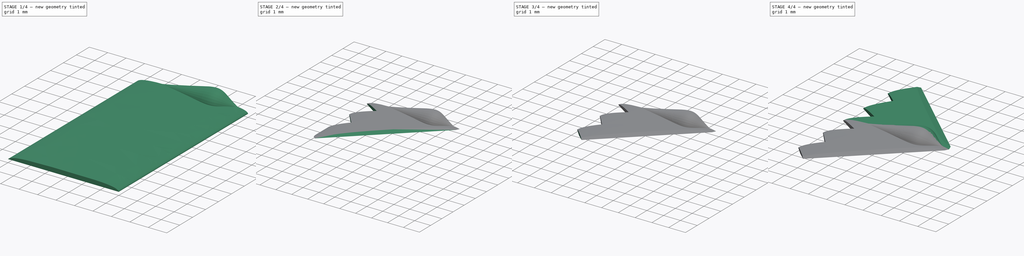
[diagram: build sequence overview — one tinted view per stage of 4, left to right]
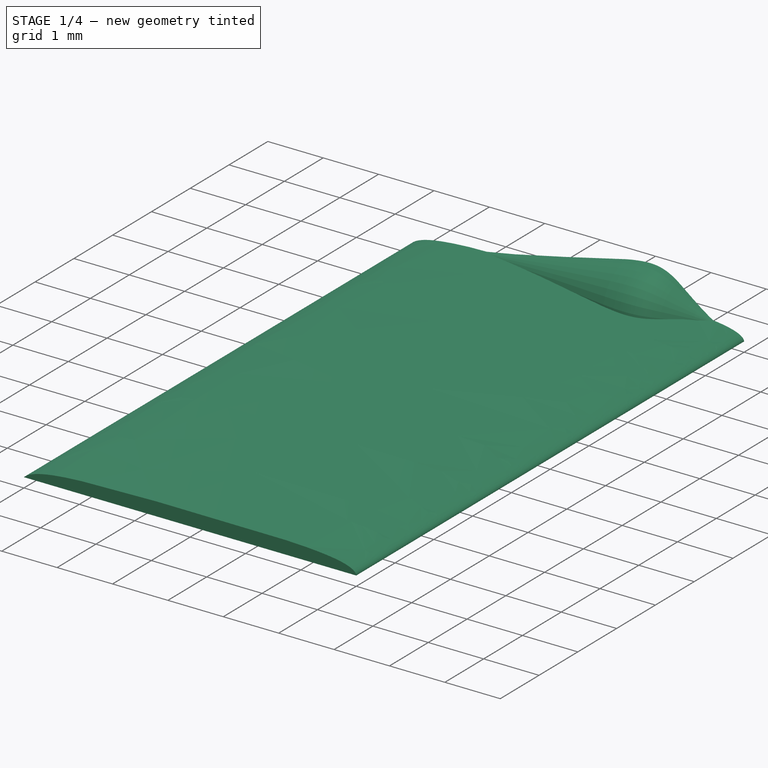
[diagram: stage 1 of 4 — iso view after this stage's code; geometry added in this stage tinted green]
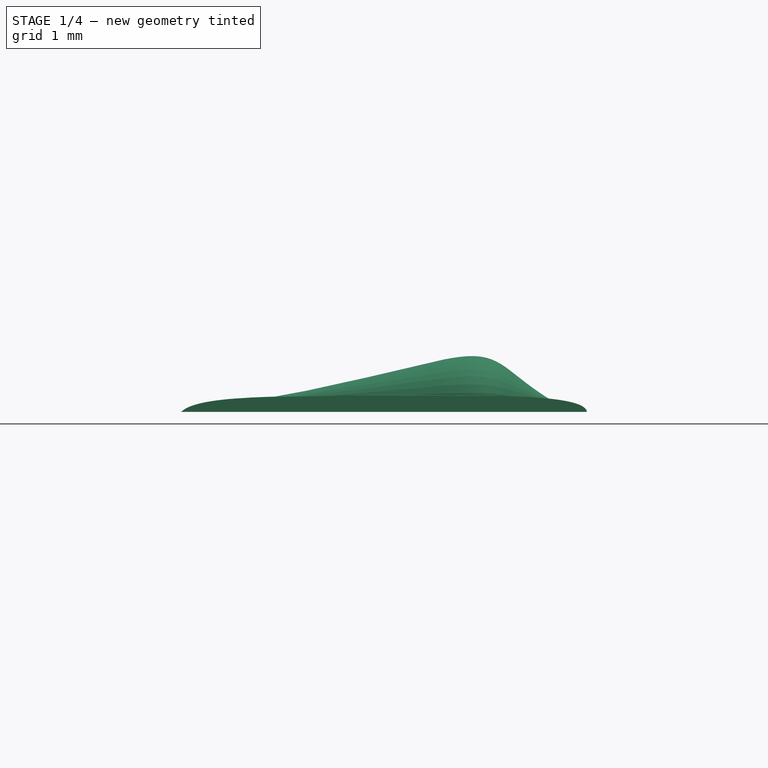
[diagram: stage 1 of 4 — front view after this stage's code; geometry added in this stage tinted green]
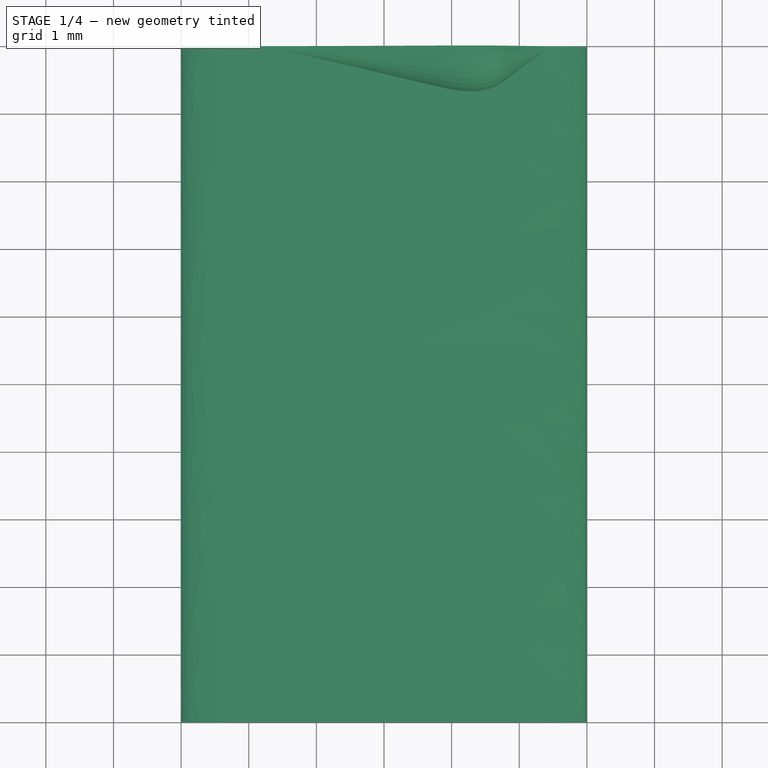
[diagram: stage 1 of 4 — top view after this stage's code; geometry added in this stage tinted green]
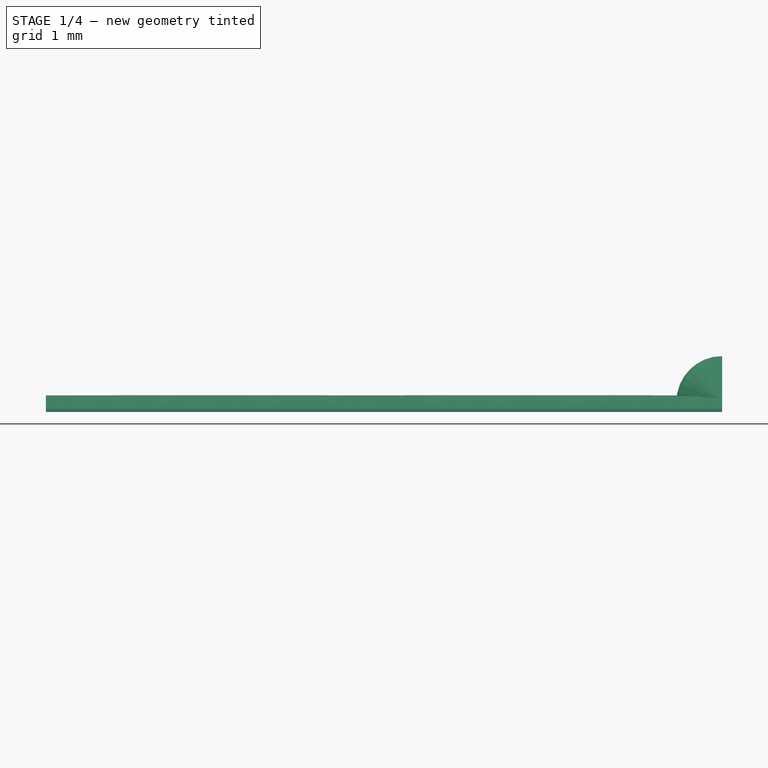
[diagram: stage 1 of 4 — right view after this stage's code; geometry added in this stage tinted green]
FCSTD DOCUMENT  (FreeCAD 0.19R)
Label: test_jet
License: All rights reserved
LicenseURL: http://en.wikipedia.org/wiki/All_rights_reserved
objects: Sketcher::SketchObject×6, PartDesign::Pocket×4, PartDesign::Body×2, Part::Fuse×2, PartDesign::Pad×1, PartDesign::Revolution×1, Part::Mirroring×1
note: 23 computed .brp shape members not serialized (recipe doc carries the construction recipe); baked Part::Feature solids carry a one-line shape summary decoded from their .brp

FEATURE [Sketcher::SketchObject] Sketch
  FullyConstrained = false
  MapMode = 5
  Placement = pos=(0,0,0) rot=(1,0,0;1.5708rad)
  Support = -> [XZ_Plane]
  sketch-geometry (12):
    g0: LineSegment StartX=-3 StartY=-0.149217 StartZ=0 EndX=3 EndY=-0.149217 EndZ=0
    g1-g6: Circle x6 (B-spline internal-alignment scaffolding for g7; pole/knot coordinates omitted)
    g7: BSplineCurve PolesCount=6 KnotsCount=4 Degree=3 IsPeriodic=0
    g8-g11: GeomPoint x4 (B-spline internal-alignment scaffolding for g7; pole/knot coordinates omitted)
  constraints (9):
    c: DistanceX(g0,g0) = 6
    c: Symmetric(g0,g0,g-2)
    c: Coincident(g7,g0)
    c: Weight(g1) = 1
    c: Equal(g1, g2-g6) x5
    c: Coincident(g7,g0)
    c: InternalAlignment(g1-g6 -> g7) x6
    c: InternalAlignment(g8-g11 -> g7) x4
    c: Horizontal(g3,g4)
FEATURE [PartDesign::Pad] Pad
  Direction = (1,1,1)
  Length = 10
  Length2 = 100
  Placement = pos=(0,0,0) rot=(1,0,0;1.5708rad)
  Profile = -> Sketch
  Type = 0
FEATURE [PartDesign::Body] Body
  Group = -> [Sketch,Pad,Sketch001,Pocket,Sketch002,Pocket001,Sketch004,Pocket002,Sketch005,Pocket003]
  Origin = -> Origin
  Tip = -> Pocket003
FEATURE [Sketcher::SketchObject] Sketch009
  FullyConstrained = false
  MapMode = 5
  Placement = pos=(0,0,0) rot=(1,0,0;1.5708rad)
  Support = -> [XZ_Plane001]
  sketch-geometry (10):
    g0-g4: Circle x5 (B-spline internal-alignment scaffolding for g5; pole/knot coordinates omitted)
    g5: BSplineCurve PolesCount=5 KnotsCount=3 Degree=3 IsPeriodic=0
    g6: GeomPoint X=2.51345 Y=0 Z=0
    g7: GeomPoint X=0.228824 Y=0.933202 Z=0
    g8: GeomPoint X=-2.03131 Y=0 Z=0
    g9: LineSegment StartX=-2.03131 StartY=0 StartZ=0 EndX=2.51345 EndY=0 EndZ=0
  constraints (9):
    c: Weight(g0) = 1
    c: Equal(g0, g1-g4) x4
    c: PointOnObject(g5,g-1)
    c: InternalAlignment(g0-g4 -> g5) x5
    c: Coincident(g0,g6)
    c: Coincident(g0,g9)
    c: Coincident(g5,g8)
    c: Coincident(g9,g5)
    c: PointOnObject(g5,g-1)
FEATURE [PartDesign::Revolution] Revolution
  Angle = 90
  Axis = (1,0,0)
  Base = (0,0,0)
  Placement = pos=(0,0,0) rot=(1,0,0;1.5708rad)
  Profile = -> Sketch009
  ReferenceAxis = -> Sketch009 [H_Axis]
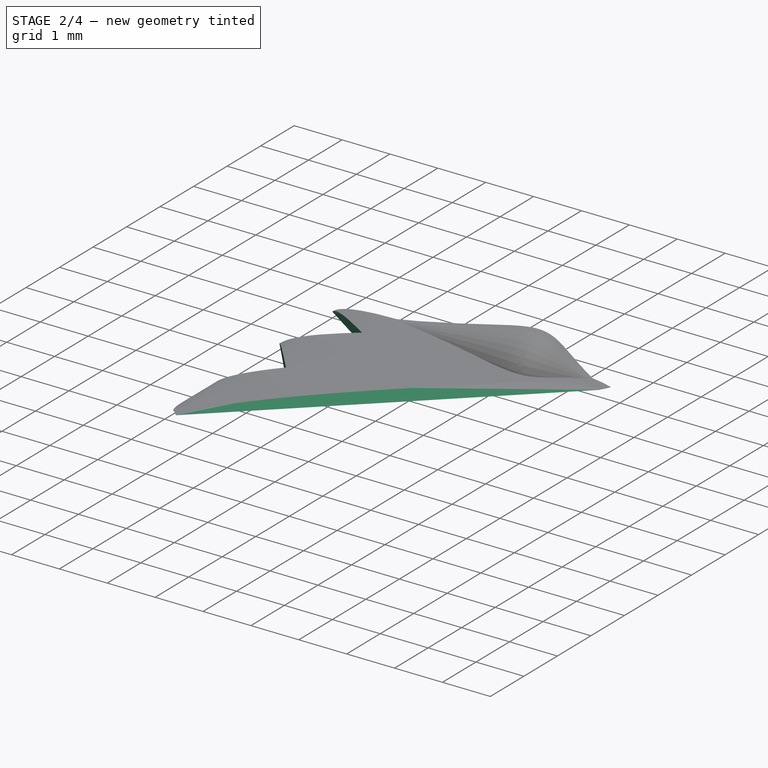
[diagram: stage 2 of 4 — iso view after this stage's code; geometry added in this stage tinted green]
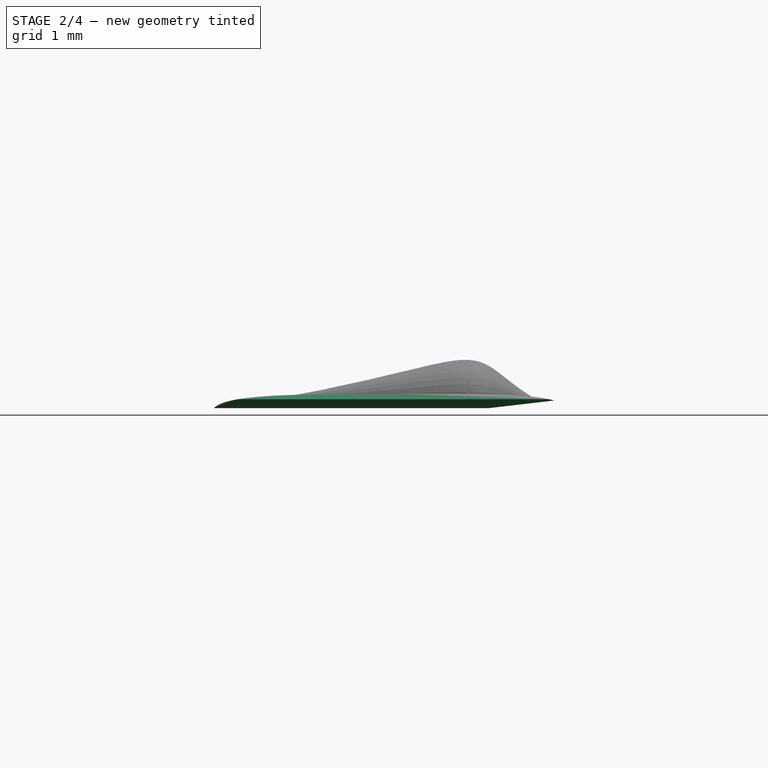
[diagram: stage 2 of 4 — front view after this stage's code; geometry added in this stage tinted green]
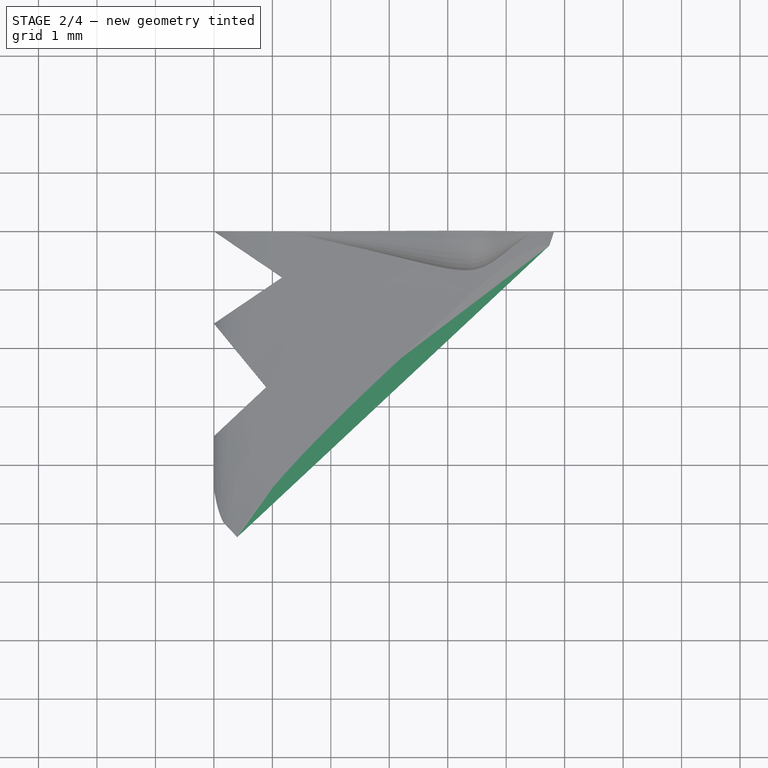
[diagram: stage 2 of 4 — top view after this stage's code; geometry added in this stage tinted green]
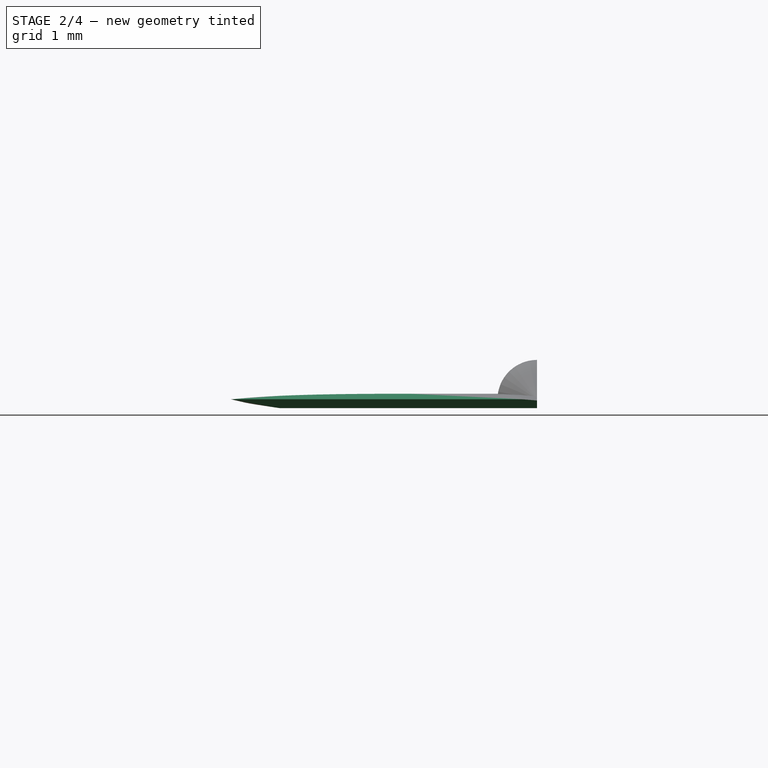
[diagram: stage 2 of 4 — right view after this stage's code; geometry added in this stage tinted green]
FEATURE [Sketcher::SketchObject] Sketch001
  ExternalGeometry = -> [Pad]
  FullyConstrained = false
  MapMode = 5
  Support = -> [XY_Plane]
  sketch-geometry (12):
    g0: LineSegment StartX=3 StartY=0 StartZ=0 EndX=-2.60075 EndY=-5.23369 EndZ=0
    g1: LineSegment StartX=-2.60075 StartY=-5.23369 StartZ=0 EndX=-3.65017 EndY=-4.11067 EndZ=0
    g2: LineSegment StartX=-3.65017 StartY=-4.11067 StartZ=0 EndX=-2.1039 EndY=-2.66575 EndZ=0
    g3: LineSegment StartX=-2.1039 StartY=-2.66575 StartZ=0 EndX=-3 EndY=-1.57682 EndZ=0
    g4: LineSegment StartX=-3 StartY=-1.57682 StartZ=0 EndX=-1.83074 EndY=-0.78841 EndZ=0
    g5: LineSegment StartX=-1.83074 StartY=-0.78841 StartZ=0 EndX=-3 EndY=1e-16 EndZ=0
    g6: LineSegment StartX=3 StartY=0 StartZ=0 EndX=7.70484 EndY=-3.44035 EndZ=0
    g7: LineSegment StartX=7.70484 StartY=-3.44035 StartZ=0 EndX=6.72306 EndY=-11.3523 EndZ=0
    g8: LineSegment StartX=6.72306 StartY=-11.3523 StartZ=0 EndX=-11.6997 EndY=-12.4207 EndZ=0
    g9: LineSegment StartX=-11.6997 StartY=-12.4207 StartZ=0 EndX=-13.6632 EndY=-3.46923 EndZ=0
    g10: LineSegment StartX=-13.6632 StartY=-3.46923 StartZ=0 EndX=-9.44735 EndY=0 EndZ=0
    g11: LineSegment StartX=-9.44735 StartY=0 StartZ=0 EndX=-3 EndY=1e-16 EndZ=0
  constraints (22):
    c: PointOnObject(g0,g-1)
    c: Coincident(g1,g0)
    c: Coincident(g2,g1)
    c: PointOnObject(g3,g-4)
    c: Coincident(g4,g3)
    c: Coincident(g5,g4)
    c: PointOnObject(g5,g-1)
    c: PointOnObject(g5,g-4)
    c: PointOnObject(g0,g-3)
    c: Angle(g0,g1) = 1.5708
    c: Angle(g1,g2) = 1.5708
    c: Coincident(g2,g3)
    c: Equal(g5,g4)
    c: Equal(g4,g3)
    c: Coincident(g6,g0)
    c: Coincident(g7,g6)
    c: Coincident(g8,g7)
    c: Coincident(g9,g8)
    c: Coincident(g10,g9)
    c: PointOnObject(g10,g-1)
    c: Coincident(g11,g10)
    c: Coincident(g11,g5)
FEATURE [PartDesign::Pocket] Pocket
  BaseFeature = -> Pad
  Length = 5
  Length2 = 100
  Midplane = true
  Placement = pos=(0,0,0) rot=(1,0,0;1.5708rad)
  Profile = -> Sketch001
  Type = 1
FEATURE [Sketcher::SketchObject] Sketch002
  ExternalGeometry = -> [Pocket]
  FullyConstrained = false
  MapMode = 5
  Placement = pos=(-3.99923,-3.73713,1.7e-15) rot=(-0.681102,-0.268702,0.681102;3.6666rad)
  Support = -> [Pocket]
  sketch-geometry (5):
    g0: LineSegment StartX=-0.00161059 StartY=2.04828 StartZ=0 EndX=0.272169 EndY=0.442639 EndZ=0
    g1: LineSegment StartX=0.272169 StartY=0.442639 StartZ=0 EndX=0.79938 EndY=2.41663 EndZ=0
    g2: LineSegment StartX=0.79938 StartY=2.41663 StartZ=0 EndX=-0.981404 EndY=2.41663 EndZ=0
    g3: LineSegment StartX=-0.981404 StartY=2.41663 StartZ=0 EndX=-0.458724 EndY=0.497927 EndZ=0
    g4: LineSegment StartX=-0.458724 StartY=0.497927 StartZ=0 EndX=-0.00161059 EndY=2.04828 EndZ=0
  constraints (7):
    c: Coincident(g0,g-3)
    c: Coincident(g1,g0)
    c: Horizontal(g2)
    c: Coincident(g3,g2)
    c: Coincident(g4,g0)
    c: Coincident(g3,g4)
    c: Coincident(g1,g2)
FEATURE [PartDesign::Pocket] Pocket001
  BaseFeature = -> Pocket
  Length = 5
  Length2 = 100
  Midplane = true
  Placement = pos=(0,0,0) rot=(1,0,0;1.5708rad)
  Profile = -> Sketch002
  Type = 1
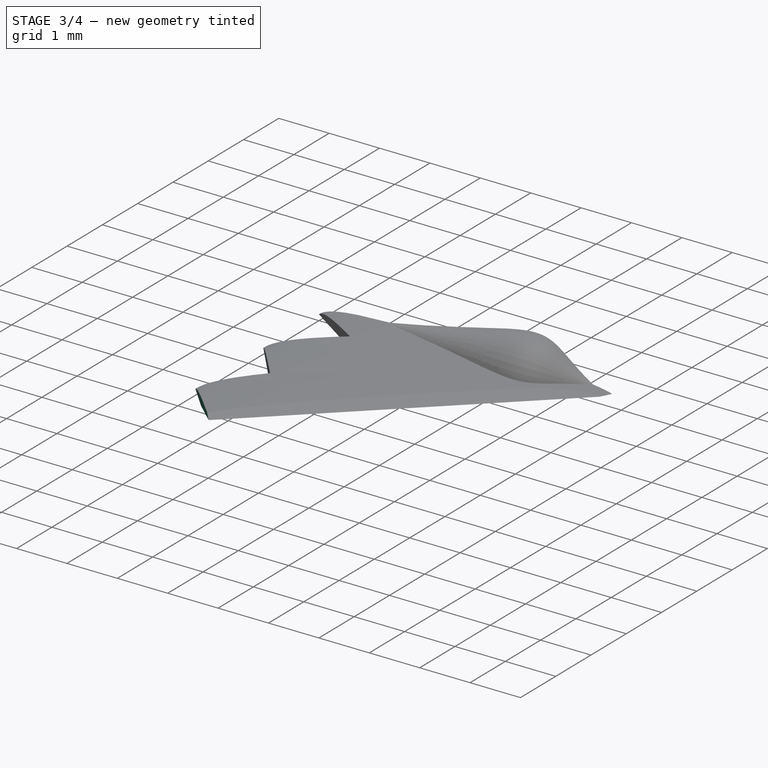
[diagram: stage 3 of 4 — iso view after this stage's code; geometry added in this stage tinted green]
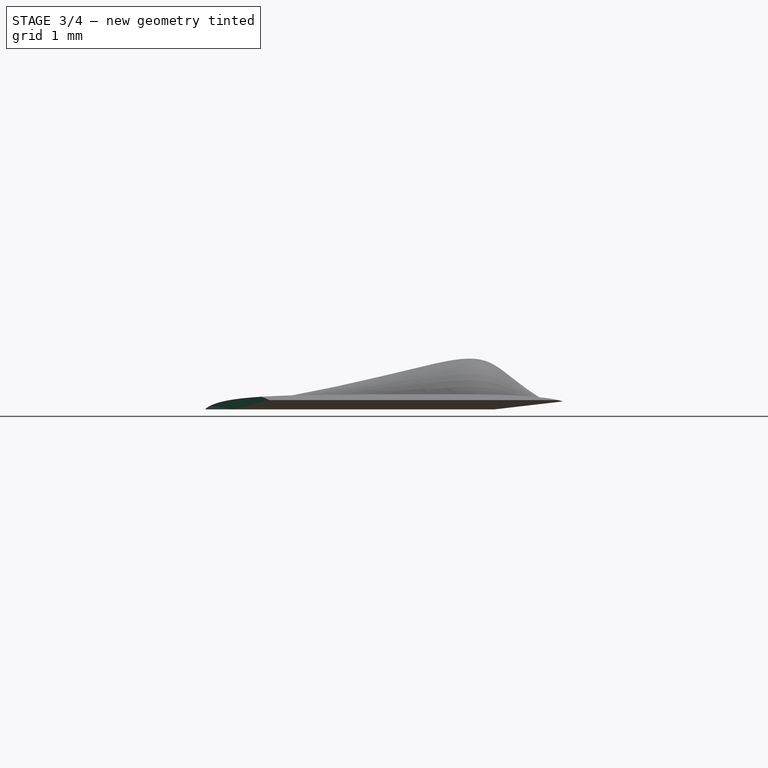
[diagram: stage 3 of 4 — front view after this stage's code; geometry added in this stage tinted green]
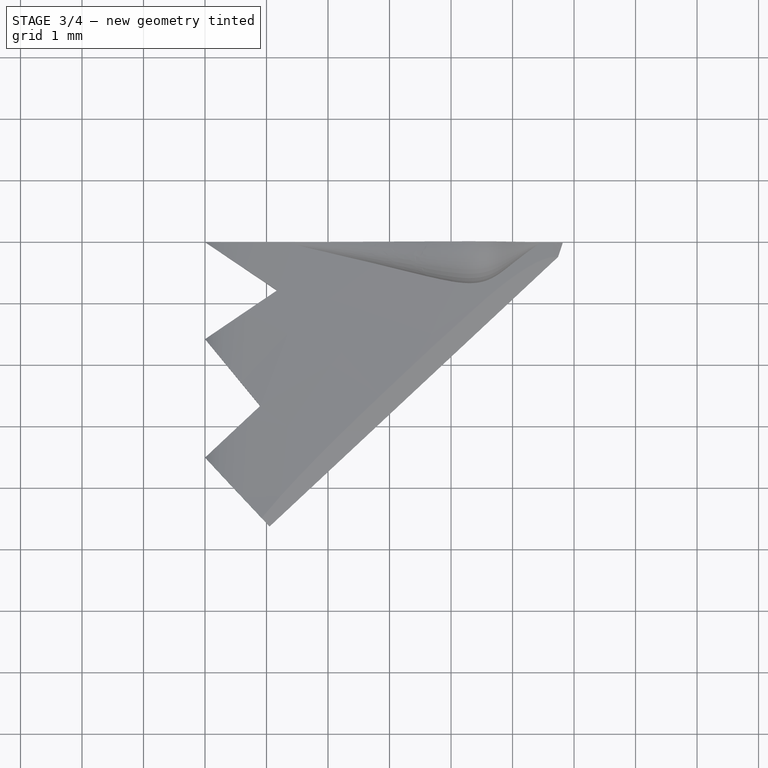
[diagram: stage 3 of 4 — top view after this stage's code; geometry added in this stage tinted green]
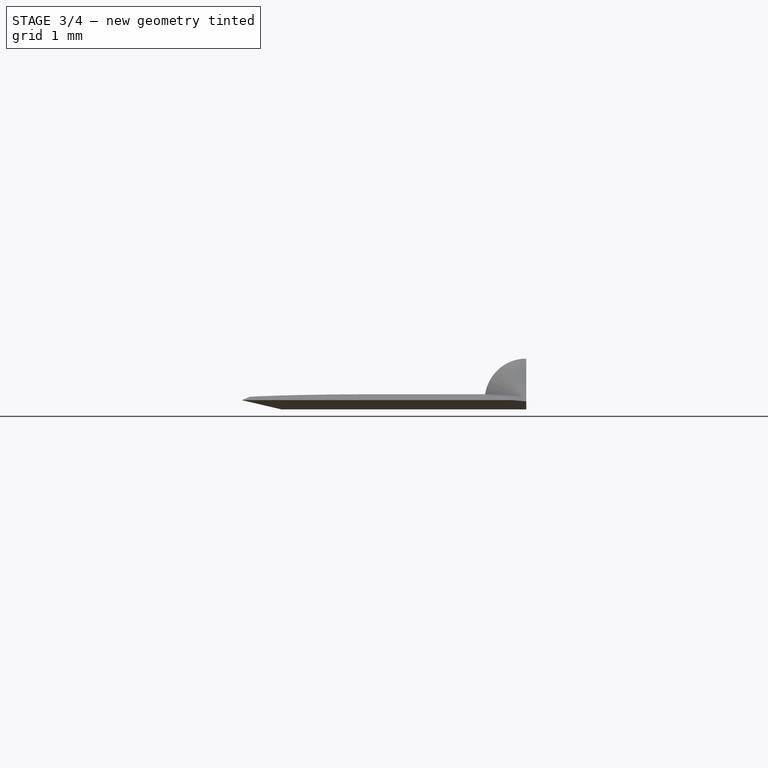
[diagram: stage 3 of 4 — right view after this stage's code; geometry added in this stage tinted green]
FEATURE [Sketcher::SketchObject] Sketch004
  FullyConstrained = false
  MapMode = 5
  Placement = pos=(-2.72745,0,0) rot=(0.707107,0,-0.707107;3.14159rad)
  sketch-geometry (4):
    g0: LineSegment StartX=0.985112 StartY=0 StartZ=0 EndX=-0.925007 EndY=0 EndZ=0
    g1: LineSegment StartX=-0.925007 StartY=0 StartZ=0 EndX=-0.925007 EndY=-0.697533 EndZ=0
    g2: LineSegment StartX=-0.925007 StartY=-0.697533 StartZ=0 EndX=0.985112 EndY=-0.697533 EndZ=0
    g3: LineSegment StartX=0.985112 StartY=-0.697533 StartZ=0 EndX=0.985112 EndY=0 EndZ=0
  constraints (9):
    c: Coincident(g0,g1)
    c: Coincident(g1,g2)
    c: Coincident(g2,g3)
    c: Coincident(g3,g0)
    c: Horizontal(g0)
    c: Horizontal(g2)
    c: Vertical(g1)
    c: Vertical(g3)
    c: PointOnObject(g0,g-1)
FEATURE [PartDesign::Pocket] Pocket002
  BaseFeature = -> Pocket001
  Length = 5
  Length2 = 100
  Midplane = true
  Placement = pos=(0,0,0) rot=(1,0,0;1.5708rad)
  Profile = -> Sketch004
  Type = 1
FEATURE [Sketcher::SketchObject] Sketch005
  ExternalGeometry = -> [Pocket002]
  FullyConstrained = false
  MapMode = 5
  Support = -> [XY_Plane]
  sketch-geometry (5):
    g0: LineSegment StartX=-3 StartY=-3.50312 StartZ=0 EndX=-1.46489 EndY=-5.14589 EndZ=0
    g1: LineSegment StartX=-1.46489 StartY=-5.14589 StartZ=0 EndX=-2.33534 EndY=-5.97394 EndZ=0
    g2: LineSegment StartX=-2.33534 StartY=-5.97394 StartZ=0 EndX=-5.9421 EndY=-4.6292 EndZ=0
    g3: LineSegment StartX=-5.9421 StartY=-4.6292 StartZ=0 EndX=-4.68314 EndY=-2.48371 EndZ=0
    g4: LineSegment StartX=-4.68314 StartY=-2.48371 StartZ=0 EndX=-3 EndY=-3.50312 EndZ=0
  constraints (7):
    c: Coincident(g1,g0)
    c: Coincident(g2,g1)
    c: Coincident(g4,g3)
    c: Coincident(g4,g-3)
    c: Coincident(g2,g3)
    c: Angle(g0,g-3) = 1.5708
    c: Coincident(g0,g4)
FEATURE [PartDesign::Pocket] Pocket003
  BaseFeature = -> Pocket002
  Length = 5
  Length2 = 100
  Midplane = true
  Placement = pos=(0,0,0) rot=(1,0,0;1.5708rad)
  Profile = -> Sketch005
  Type = 1
FEATURE [PartDesign::Body] Body001
  Group = -> [Sketch009,Revolution]
  Origin = -> Origin001
  Tip = -> Revolution
FEATURE [Part::Fuse] Fusion
  Base = -> Body
  Tool = -> Body001
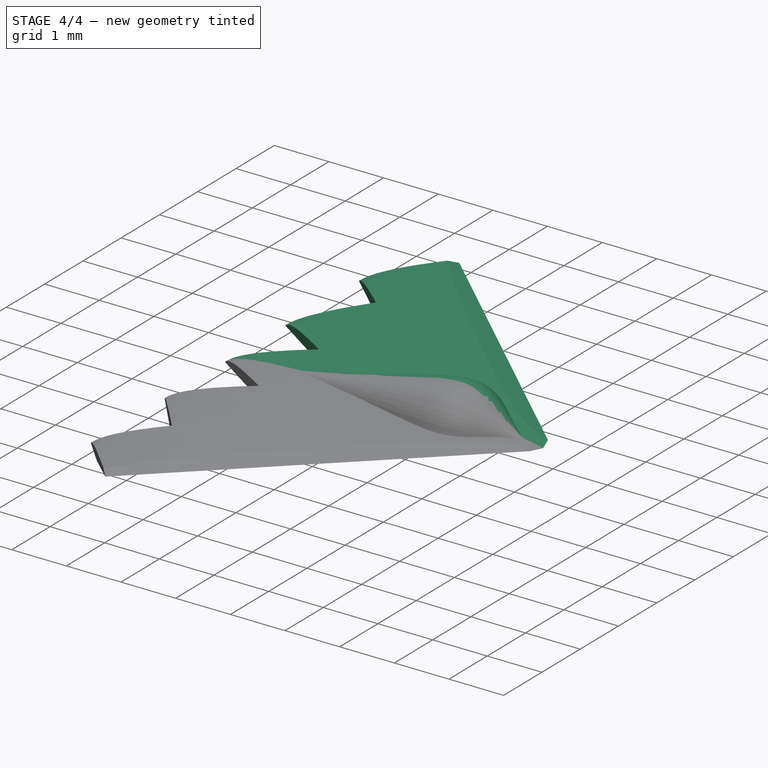
[diagram: stage 4 of 4 — iso view after this stage's code; geometry added in this stage tinted green]
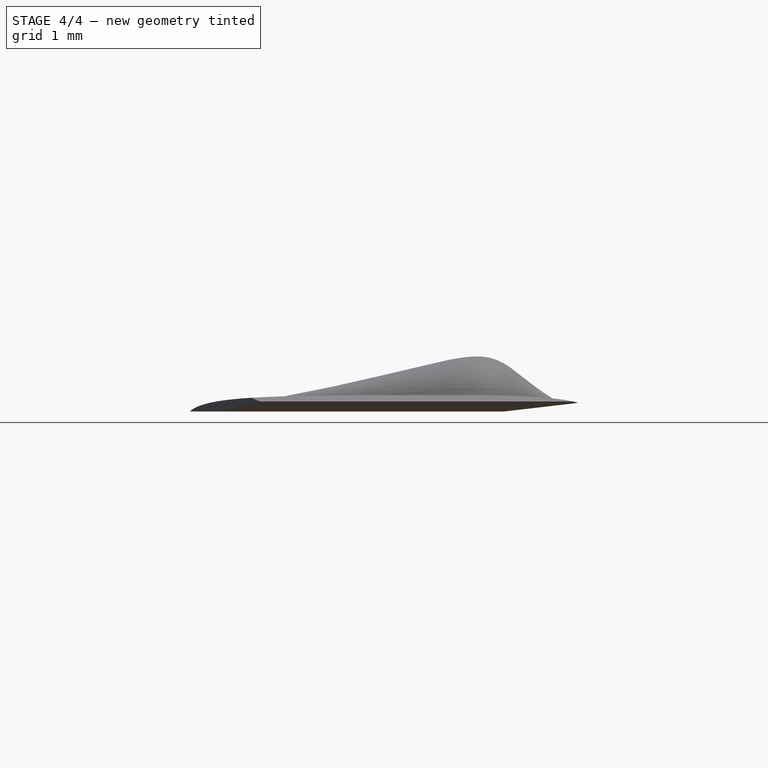
[diagram: stage 4 of 4 — front view after this stage's code; geometry added in this stage tinted green]
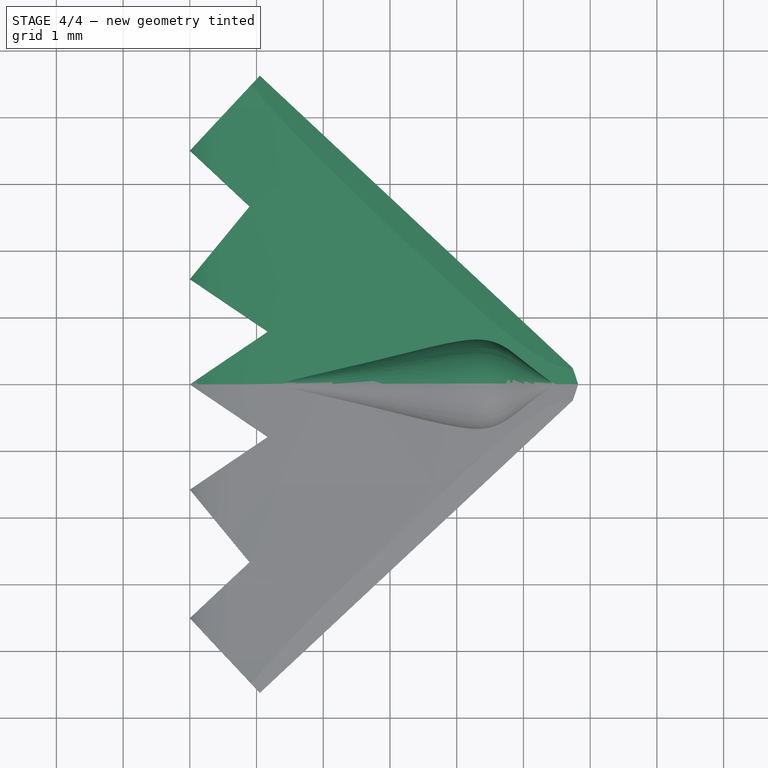
[diagram: stage 4 of 4 — top view after this stage's code; geometry added in this stage tinted green]
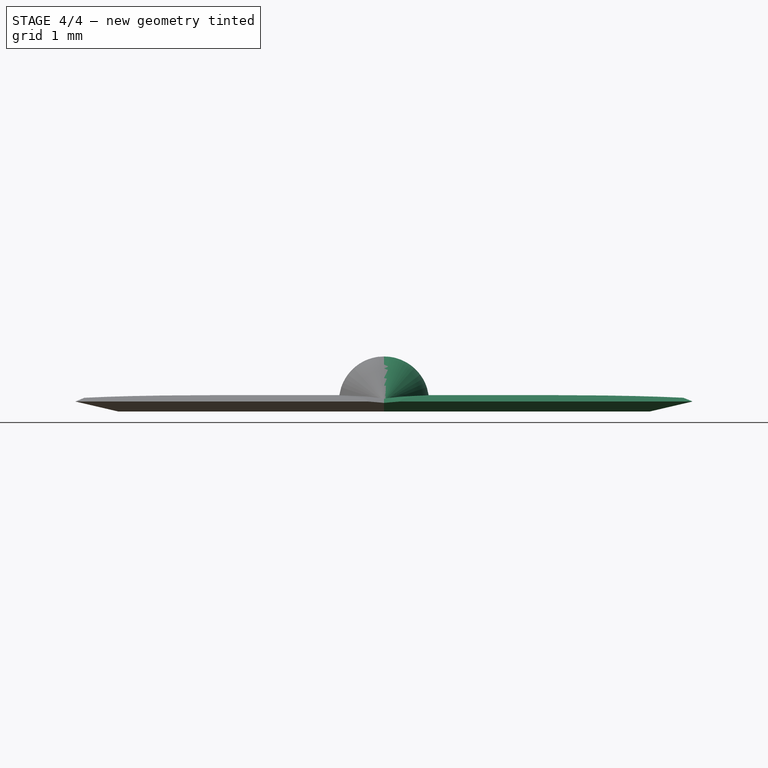
[diagram: stage 4 of 4 — right view after this stage's code; geometry added in this stage tinted green]
FEATURE [Part::Mirroring] Part__Mirroring  label="Fusion (Mirror #1)"
  Base = (0,0,0)
  Normal = (0,1,0)
  Source = -> Fusion
FEATURE [Part::Fuse] Fusion001
  Base = -> Fusion
  Tool = -> Part__Mirroring
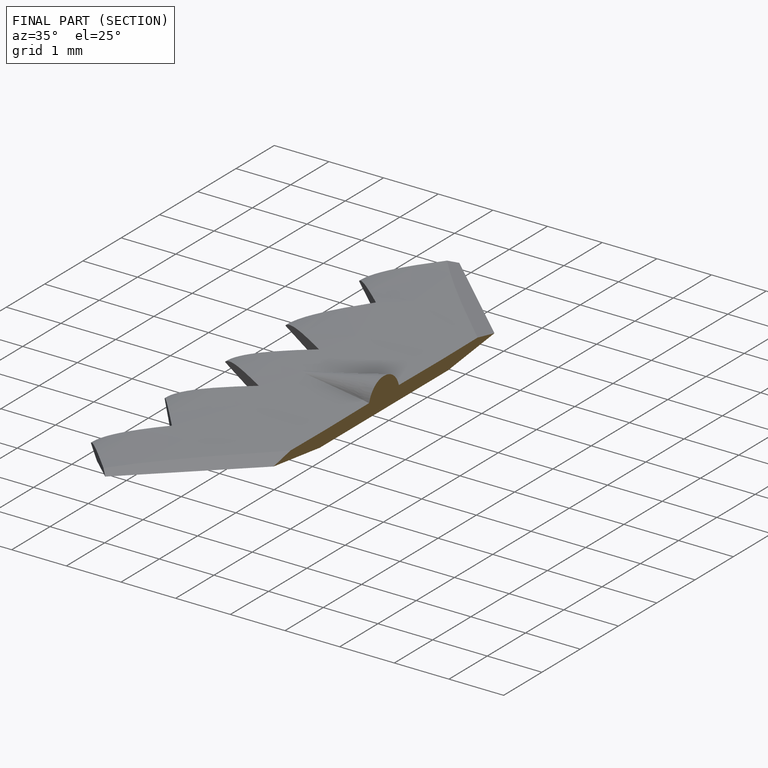
[diagram: finished part — half-section view (interior)]
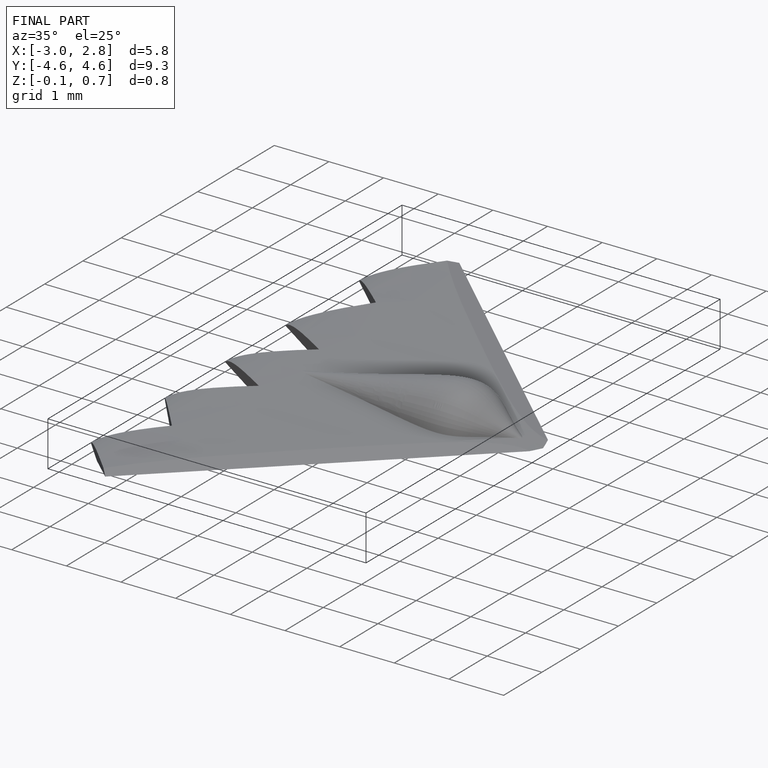
[diagram: finished part — iso view with bounding-box wireframe]
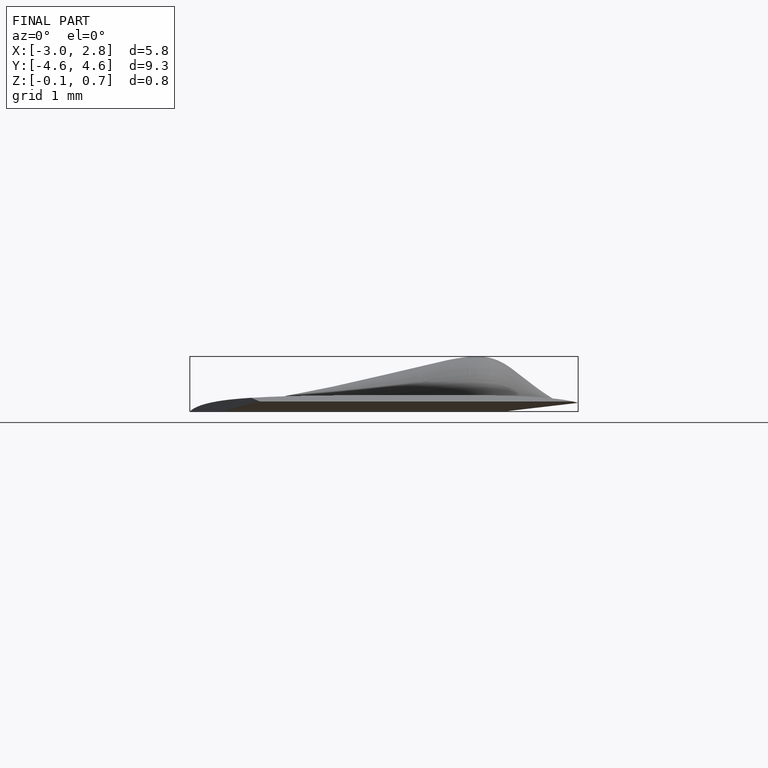
[diagram: finished part — front view with bounding-box wireframe]
